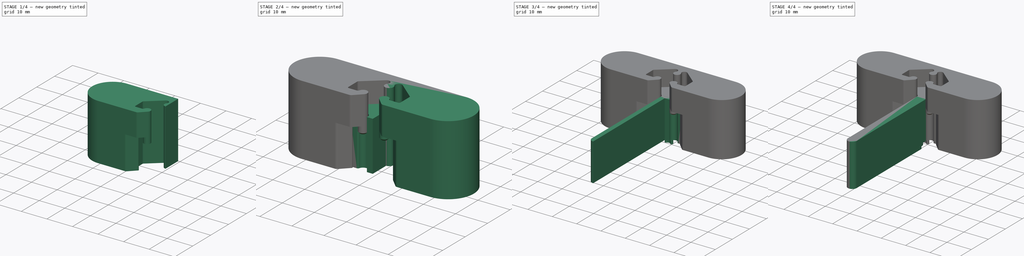
[diagram: build sequence overview — one tinted view per stage of 4, left to right]
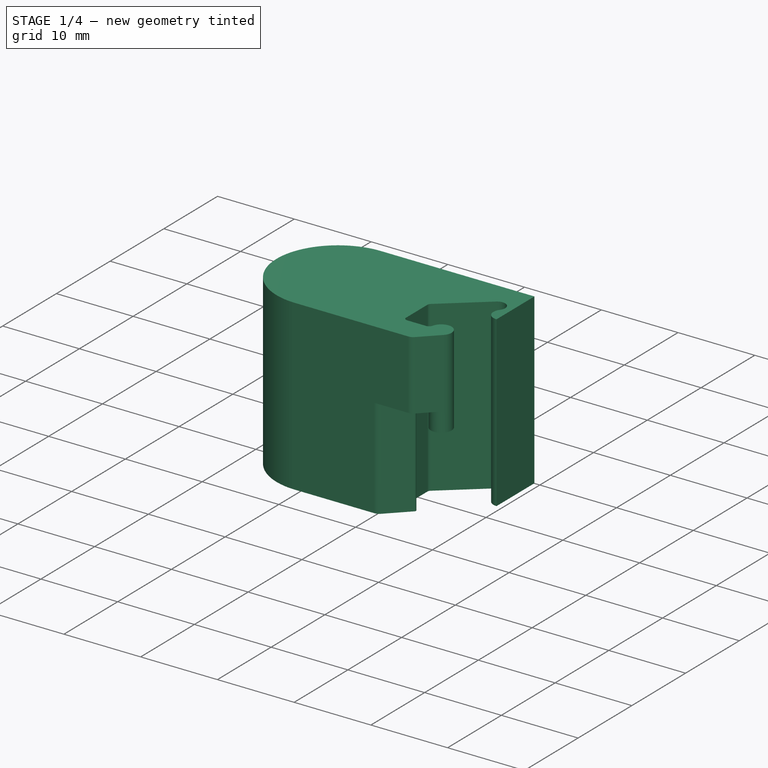
[diagram: stage 1 of 4 — iso view after this stage's code; geometry added in this stage tinted green]
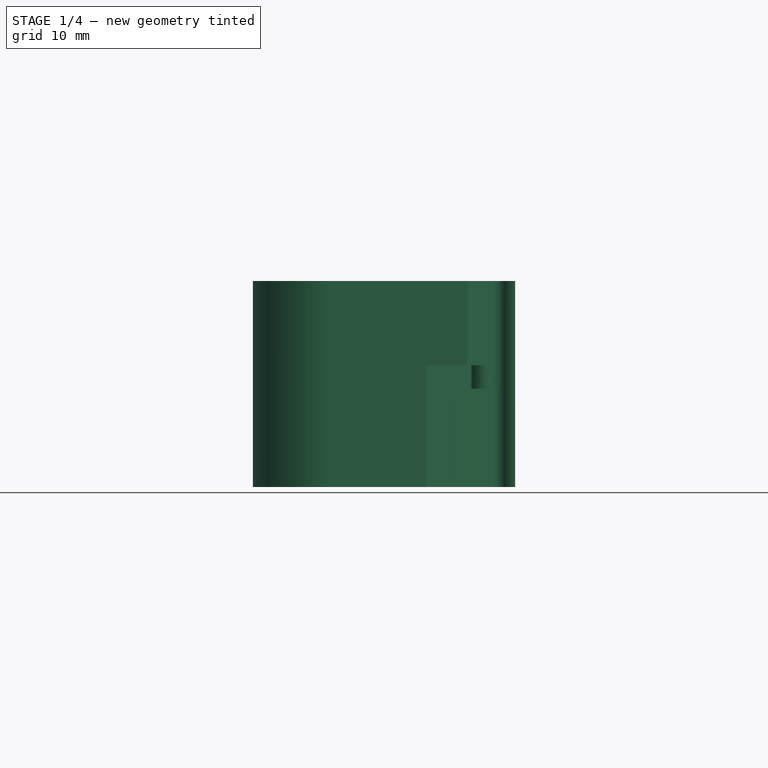
[diagram: stage 1 of 4 — front view after this stage's code; geometry added in this stage tinted green]
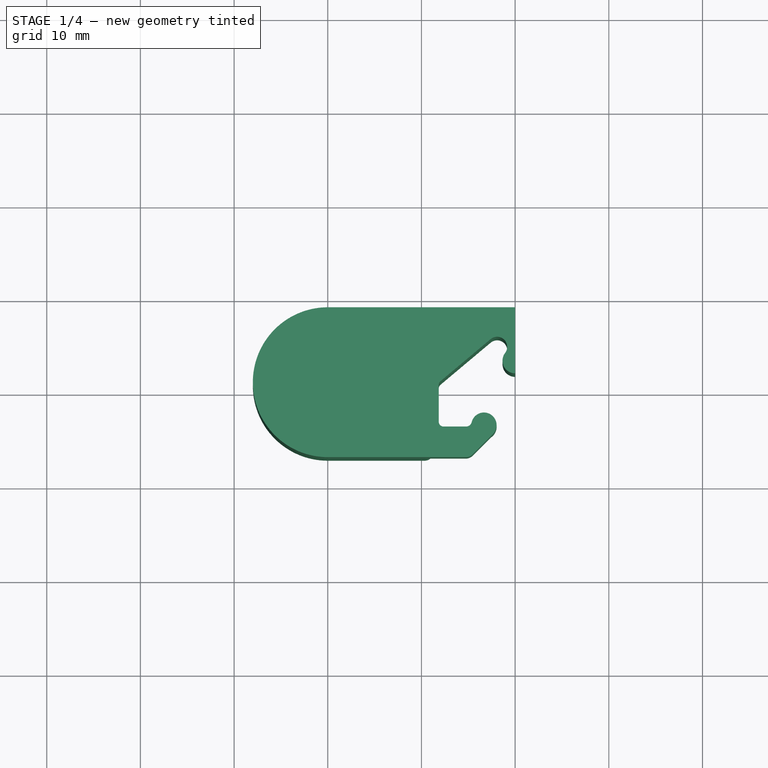
[diagram: stage 1 of 4 — top view after this stage's code; geometry added in this stage tinted green]
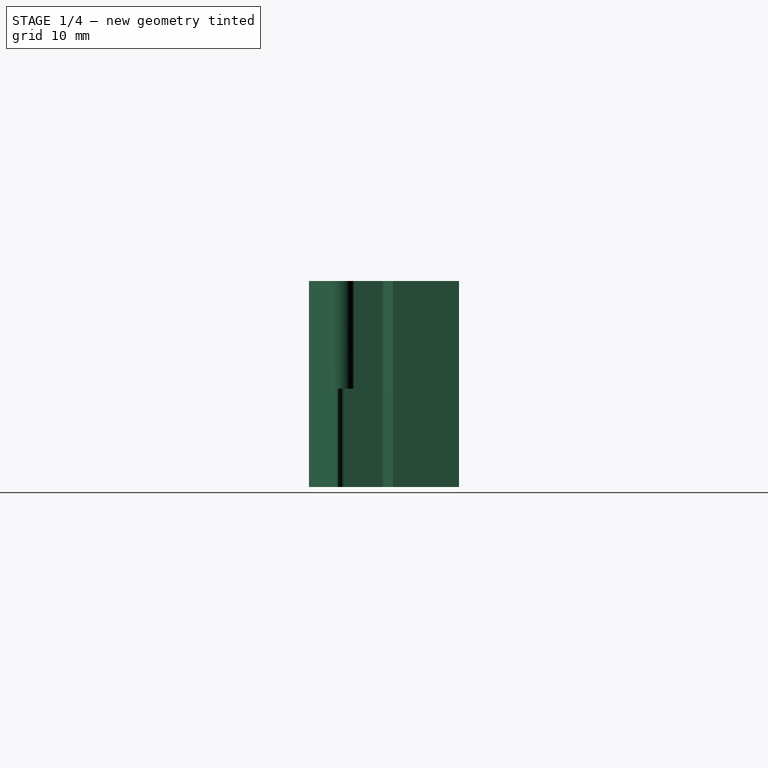
[diagram: stage 1 of 4 — right view after this stage's code; geometry added in this stage tinted green]
FCSTD DOCUMENT  (FreeCAD 0.21R33771 (Git))
Label: magnet_press_jig_side_2 part_v2
License: All rights reserved
LicenseURL: https://en.wikipedia.org/wiki/All_rights_reserved
objects: Sketcher::SketchObject×9, PartDesign::Pad×8, PartDesign::Mirrored×3, PartDesign::Body×2, PartDesign::Plane×1, PartDesign::Chamfer×1
note: 33 computed .brp shape members not serialized (recipe doc carries the construction recipe); baked Part::Feature solids carry a one-line shape summary decoded from their .brp

FEATURE [Sketcher::SketchObject] Sketch001
  FullyConstrained = true
  MapMode = 5
  Support = -> [XY_Plane001]
  sketch-geometry (14):
    g0: LineSegment StartX=0 StartY=9 StartZ=0 EndX=-20 EndY=9 EndZ=0
    g1: ArcOfCircle CenterX=0 CenterY=3.3 CenterZ=0 NormalX=0 NormalY=0 NormalZ=1 AngleXU=0 Radius=1.35 StartAngle=2.48785 EndAngle=4.71239
    g2: LineSegment StartX=-2.616 StartY=5.59829 StartZ=0 EndX=-7.97139 EndY=1.10457 EndZ=0
    g3: LineSegment StartX=-8.15 StartY=0.721553 StartZ=0 EndX=-8.15 EndY=-3.23 EndZ=0
    g4: LineSegment StartX=-20 StartY=-7 StartZ=0 EndX=-9.68066 EndY=-7 EndZ=0
    g5: LineSegment StartX=0 StartY=9 StartZ=0 EndX=0 EndY=1.95 EndZ=0
    g6: ArcOfCircle CenterX=-1.925 CenterY=4.77479 CenterZ=0 NormalX=0 NormalY=0 NormalZ=1 AngleXU=0 Radius=1.075 StartAngle=5.62944 EndAngle=8.55211
    g7: ArcOfCircle CenterX=-7.65 CenterY=0.721553 CenterZ=0 NormalX=0 NormalY=0 NormalZ=1 AngleXU=0 Radius=0.5 StartAngle=2.26893 EndAngle=3.14159
    g8: LineSegment StartX=-7.65 StartY=-3.73 StartZ=0 EndX=-6.6 EndY=-3.73 EndZ=0
    g9: LineSegment StartX=-6.42322 StartY=-4.15678 StartZ=0 EndX=-8.97355 EndY=-6.70711 EndZ=0
    g10: ArcOfCircle CenterX=-7.65 CenterY=-3.23 CenterZ=0 NormalX=0 NormalY=0 NormalZ=1 AngleXU=0 Radius=0.5 StartAngle=3.14159 EndAngle=4.71239
    g11: ArcOfCircle CenterX=-20 CenterY=1 CenterZ=0 NormalX=0 NormalY=0 NormalZ=1 AngleXU=0 Radius=8 StartAngle=1.5708 EndAngle=4.71239
    g12: ArcOfCircle CenterX=-9.68066 CenterY=-6 CenterZ=0 NormalX=0 NormalY=0 NormalZ=1 AngleXU=0 Radius=1 StartAngle=4.71239 EndAngle=5.49779
    g13: ArcOfCircle CenterX=-6.6 CenterY=-3.98 CenterZ=0 NormalX=0 NormalY=0 NormalZ=1 AngleXU=0 Radius=0.25 StartAngle=5.49779 EndAngle=7.85398
  constraints (39):
    c: PointOnObject(g0,g-2)
    c: Horizontal(g0)
    c: PointOnObject(g1,g-2)
    c: Vertical(g3)
    c: Angle(g3,g2) = 2.26893
    c: DistanceY(g-1,g1) = 3.3
    c: Diameter(g1) = 2.7
    c: DistanceY(g4,g-1) = 7
    c: Horizontal(g4)
    c: DistanceY(g4,g-1) = 7
    c: Coincident(g5,g0)
    c: Coincident(g5,g1)
    c: Vertical(g5)
    c: DistanceY(g-1,g0) = 9
    c: DistanceX(g4,g-1) = 20
    c: Tangent(g1,g6) = 1.5708
    c: Tangent(g2,g7) = -1.5708
    c: Tangent(g3,g7) = -1.5708
    c: Diameter(g7) = 1
    c: Horizontal(g8)
    c: Tangent(g3,g10) = -1.5708
    c: Tangent(g8,g10) = -1.5708
    c: Diameter(g10) = 1
    c: DistanceX(g3,g-1) = 8.15
    c: Vertical(g0,g4)
    c: Coincident(g11,g4)
    c: Tangent(g11,g0) = -1.5708
    c: Angle(g9,g-2) = 0.785398
    c: Tangent(g6,g2) = -1.5708
    c: Diameter(g6) = 2.15
    c: DistanceY(g-1,g6) = 4.77479
    c: Tangent(g4,g12) = -1.5708
    c: Tangent(g9,g12) = 1.5708
    c: Diameter(g12) = 2
    c: Tangent(g9,g13) = 1.5708
    c: Tangent(g8,g13) = 1.5708
    c: DistanceY(g8,g-1) = 3.73
    c: Diameter(g13) = 0.5
    c: DistanceX(g13,g-1) = 6.6
FEATURE [PartDesign::Pad] Pad001
  Direction = (0,0,1)
  Length = 22
  Length2 = 10
  Profile = -> Sketch001
  ReferenceAxis = -> Sketch001 [N_Axis]
  Type = 0
FEATURE [PartDesign::Plane] DatumPlane
  AttachmentOffset = pos=(0,0,13) rot=(0,0,1;0rad)
  Length = 66.4553
  MapMode = 5
  Placement = pos=(0,0,13) rot=(0,0,1;0rad)
  ResizeMode = 0
  Support = -> [XY_Plane001]
  Width = 60.572
FEATURE [Sketcher::SketchObject] Sketch002
  FullyConstrained = true
  MapMode = 5
  Placement = pos=(0,0,13) rot=(0,0,1;0rad)
  Support = -> [DatumPlane]
  sketch-geometry (7):
    g0: ArcOfCircle CenterX=-3.33 CenterY=-3.58455 CenterZ=0 NormalX=0 NormalY=0 NormalZ=1 AngleXU=0 Radius=1.35 StartAngle=5.49779 EndAngle=9.18761
    g1: LineSegment StartX=-5.23 StartY=-3.73 StartZ=0 EndX=-10 EndY=-3.73 EndZ=0
    g2: LineSegment StartX=-5.25048 StartY=-7 StartZ=0 EndX=-10 EndY=-7 EndZ=0
    g3: LineSegment StartX=-10 StartY=-7 StartZ=0 EndX=-10 EndY=-3.73 EndZ=0
    g4: ArcOfCircle CenterX=-5.23 CenterY=-3.12528 CenterZ=0 NormalX=0 NormalY=0 NormalZ=1 AngleXU=0 Radius=0.60472 StartAngle=4.71239 EndAngle=6.04601
    g5: LineSegment StartX=-4.54337 StartY=-6.70711 StartZ=0 EndX=-2.37541 EndY=-4.53914 EndZ=0
    g6: ArcOfCircle CenterX=-5.25048 CenterY=-6 CenterZ=0 NormalX=0 NormalY=0 NormalZ=1 AngleXU=0 Radius=1 StartAngle=4.71239 EndAngle=5.49779
  constraints (19):
    c: DistanceX(g0,g-1) = 3.33
    c: Diameter(g0) = 2.7
    c: DistanceY(g0,g-1) = 3.58455
    c: Horizontal(g1)
    c: Horizontal(g2)
    c: Coincident(g3,g2)
    c: Coincident(g3,g1)
    c: Vertical(g3)
    c: DistanceY(g1,g-1) = 3.73
    c: DistanceX(g2,g-1) = 10
    c: Tangent(g4,g0) = 1.5708
    c: Tangent(g4,g1) = 1.5708
    c: DistanceX(g4,g-1) = 5.23
    c: Tangent(g5,g0) = -1.5708
    c: Angle(g5,g2) = 2.35619
    c: Tangent(g5,g6) = -1.5708
    c: Tangent(g2,g6) = 1.5708
    c: Diameter(g6) = 2
    c: DistanceY(g2,g-1) = 7
FEATURE [PartDesign::Pad] Pad002
  BaseFeature = -> Pad001
  Direction = (0,0,1)
  Length = 9
  Length2 = 10
  Profile = -> Sketch002
  ReferenceAxis = -> Sketch002 [N_Axis]
  Refine = true
  Type = 0
FEATURE [Sketcher::SketchObject] Sketch003
  FullyConstrained = true
  MapMode = 5
  Placement = pos=(0,0,13) rot=(0,0,1;0rad)
  Support = -> [DatumPlane]
  sketch-geometry (1):
    g0: Circle CenterX=-3.33 CenterY=-3.58455 CenterZ=0 NormalX=0 NormalY=0 NormalZ=1 AngleXU=0 Radius=1.35
  constraints (3):
    c: DistanceX(g0,g-1) = 3.33
    c: DistanceY(g0,g-1) = 3.58455
    c: Diameter(g0) = 2.7
FEATURE [PartDesign::Pad] Pad003
  BaseFeature = -> Pad002
  Direction = (0,0,1)
  Length = 2.5
  Length2 = 10
  Profile = -> Sketch003
  ReferenceAxis = -> Sketch003 [N_Axis]
  Reversed = true
  Type = 0
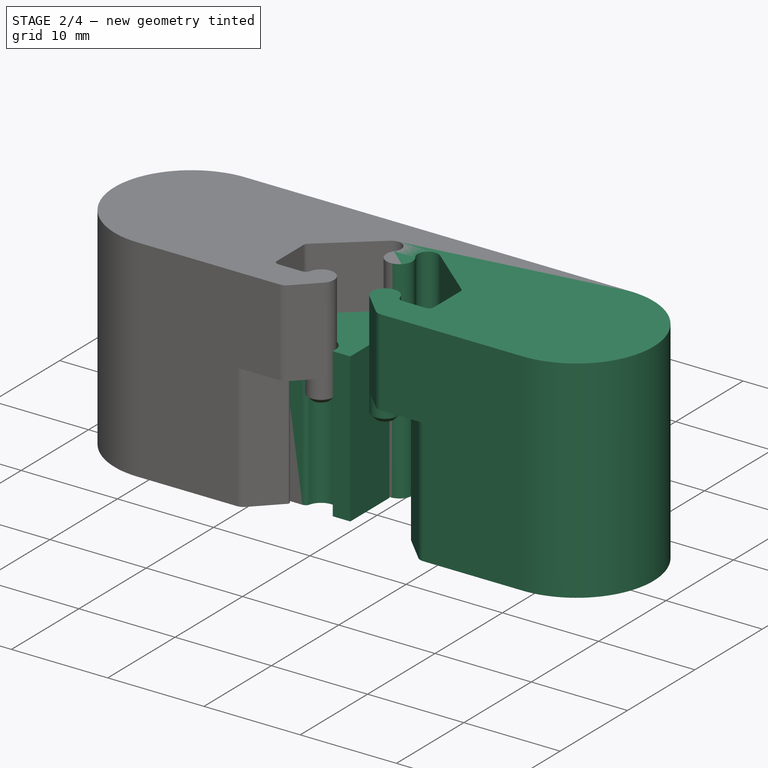
[diagram: stage 2 of 4 — iso view after this stage's code; geometry added in this stage tinted green]
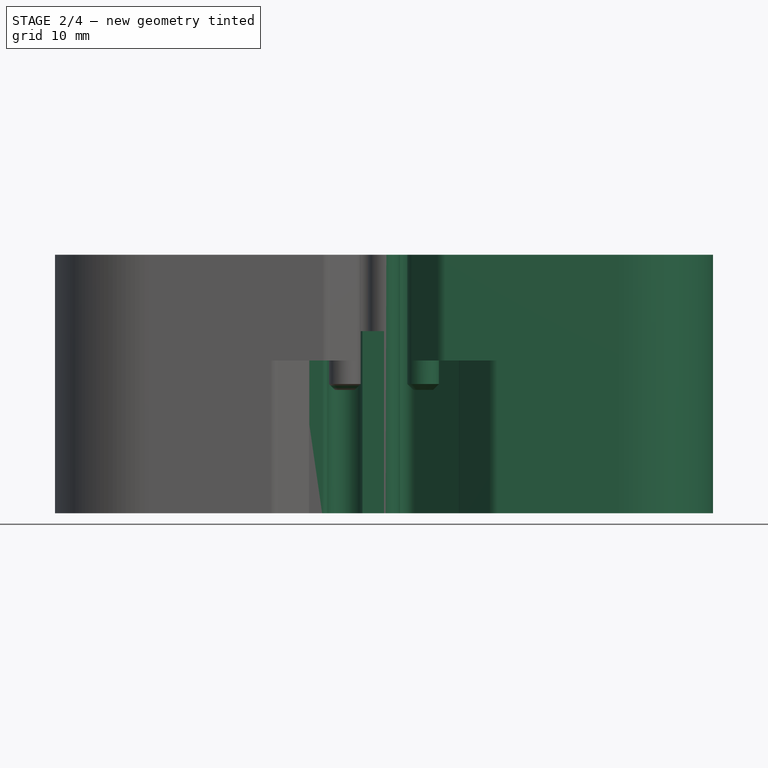
[diagram: stage 2 of 4 — front view after this stage's code; geometry added in this stage tinted green]
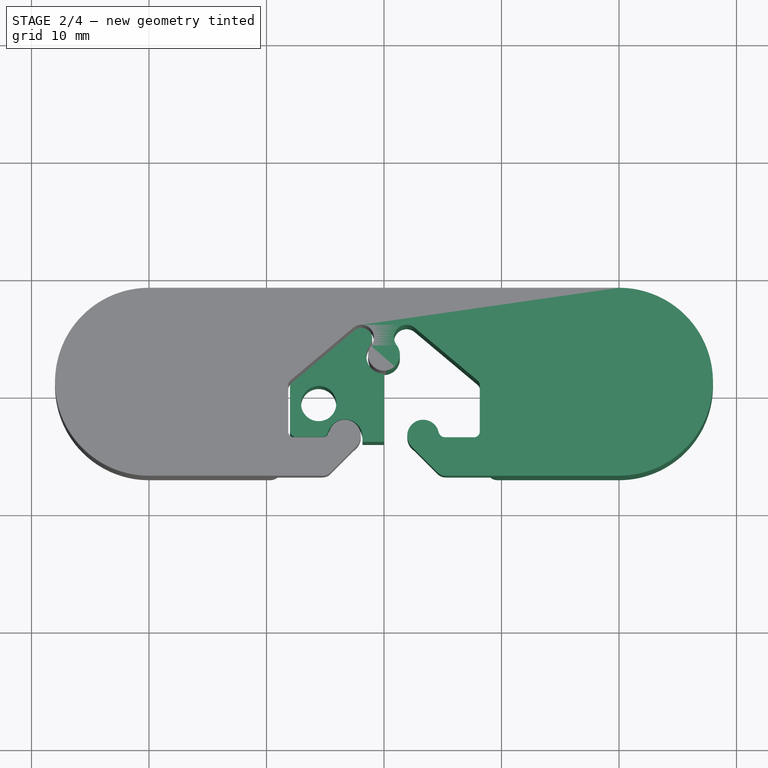
[diagram: stage 2 of 4 — top view after this stage's code; geometry added in this stage tinted green]
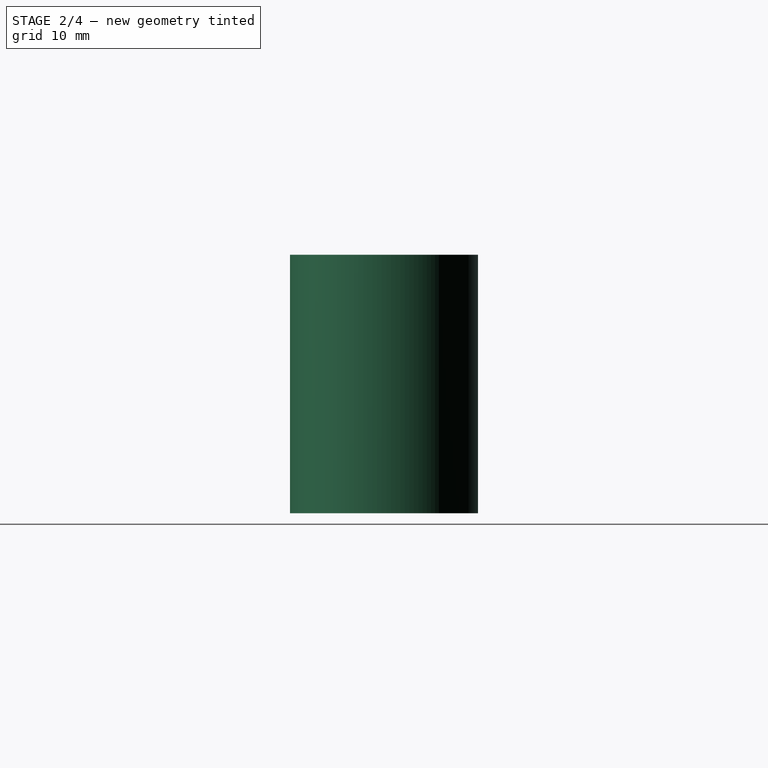
[diagram: stage 2 of 4 — right view after this stage's code; geometry added in this stage tinted green]
FEATURE [Sketcher::SketchObject] Sketch
  FullyConstrained = true
  MapMode = 5
  Support = -> [XY_Plane]
  sketch-geometry (17):
    g0: Circle CenterX=-5.56047 CenterY=-0.741499 CenterZ=0 NormalX=0 NormalY=0 NormalZ=1 AngleXU=0 Radius=1.5
    g1: ArcOfCircle CenterX=-3.33 CenterY=-3.58 CenterZ=0 NormalX=0 NormalY=0 NormalZ=1 AngleXU=0 Radius=1.5 StartAngle=0 EndAngle=2.88891
    g2: ArcOfCircle CenterX=0 CenterY=3.3 CenterZ=0 NormalX=0 NormalY=0 NormalZ=1 AngleXU=0 Radius=1.5 StartAngle=2.48706 EndAngle=4.71239
    g3: LineSegment StartX=-8 StartY=-3.08 StartZ=0 EndX=-8 EndY=0.651604 EndZ=0
    g4: LineSegment StartX=-7.82139 StartY=1.03463 StartZ=0 EndX=-2.51958 EndY=5.48338 EndZ=0
    g5: LineSegment StartX=-3e-16 StartY=-4 StartZ=0 EndX=-3e-16 EndY=1.8 EndZ=0
    g6: LineSegment StartX=-1.83 StartY=-3.58 StartZ=0 EndX=-1.83 EndY=-4 EndZ=0
    g7: LineSegment StartX=-1.83 StartY=-4 StartZ=0 EndX=-2e-16 EndY=-4 EndZ=0
    g8: LineSegment StartX=-3.33 StartY=-3.58 StartZ=0 EndX=-5.56047 EndY=-0.741499 EndZ=0
    g9: LineSegment StartX=-7.5 StartY=-3.58 StartZ=0 EndX=-5.26649 EndY=-3.58 EndZ=0
    g10: ArcOfCircle CenterX=-7.5 CenterY=0.651604 CenterZ=0 NormalX=0 NormalY=0 NormalZ=1 AngleXU=0 Radius=0.5 StartAngle=2.26893 EndAngle=3.14159
    g11: ArcOfCircle CenterX=-7.5 CenterY=-3.08 CenterZ=0 NormalX=0 NormalY=0 NormalZ=1 AngleXU=0 Radius=0.5 StartAngle=3.14159 EndAngle=4.71239
    g12: ArcOfCircle CenterX=-5.26649 CenterY=-3.08 CenterZ=0 NormalX=0 NormalY=0 NormalZ=1 AngleXU=0 Radius=0.5 StartAngle=4.71239 EndAngle=6.03051
    g13: GeomPoint X=-4.63368 Y=-1.92093 Z=0
    g14: GeomPoint X=-4.25679 Y=-2.40057 Z=0
    g15: ArcOfCircle CenterX=-1.925 CenterY=4.77479 CenterZ=0 NormalX=0 NormalY=0 NormalZ=1 AngleXU=0 Radius=0.925 StartAngle=5.63073 EndAngle=8.55211
    g16: GeomPoint X=-1 Y=4.77479 Z=0
  constraints (49):
    c: PointOnObject(g2,g-2)
    c: DistanceY(g-1,g2) = 3.3
    c: Diameter(g2) = 3
    c: DistanceX(g1,g-1) = 3.33
    c: Diameter(g0) = 3
    c: Diameter(g1) = 3
    c: Vertical(g3)
    c: Vertical(g5)
    c: Coincident(g2,g5)
    c: Angle(g3,g4) = 2.26893
    c: PointOnObject(g5,g-2)
    c: Horizontal(g1,g1)
    c: Coincident(g6,g1)
    c: Vertical(g6)
    c: Coincident(g7,g6)
    c: Horizontal(g7)
    c: Coincident(g5,g7)
    c: DistanceY(g1,g-1) = 3.58
    c: DistanceY(g5,g-1) = 4
    c: Coincident(g8,g1)
    c: Coincident(g8,g0)
    c: Distance(g8) = 3.61
    c: Angle(g8,g-1) = 0.904779
    c: Tangent(g4,g10) = 1.5708
    c: Tangent(g3,g10) = 1.5708
    c: Tangent(g3,g11) = 1.5708
    c: Tangent(g9,g11) = -1.5708
    c: Tangent(g1,g12) = 1.5708
    c: Tangent(g9,g12) = -1.5708
    c: Equal(g12,g11)
    c: Equal(g12,g10)
    c: Diameter(g12) = 1
    c: Horizontal(g9)
    c: Horizontal(g9,g1)
    c: DistanceX(g3,g-1) = 8
    c: PointOnObject(g14,g8)
    c: PointOnObject(g13,g8)
    c: PointOnObject(g13,g0)
    c: PointOnObject(g14,g1)
    c: Distance(g14,g13) = 0.61
    c: Tangent(g15,g4) = 1.5708
    c: Diameter(g15) = 1.85
    c: PointOnObject(g16,g15)
    c: DistanceX(g16,g-1) = 1
    c: Horizontal(g16,g15)
    c: Coincident(g15,g2)
    c: DistanceX(g15,g-1) = 1.925
    c: DistanceY(g-1,g15) = 4.77479
    c: DistanceX(g2,g-1) = 1.19
FEATURE [PartDesign::Pad] Pad
  Direction = (0,0,1)
  Length = 15.5
  Length2 = 10
  Profile = -> Sketch
  ReferenceAxis = -> Sketch [N_Axis]
  Type = 0
FEATURE [PartDesign::Mirrored] Mirrored001
  BaseFeature = -> Pad003
  MirrorPlane = -> Sketch001 [V_Axis]
  Originals = -> [Pad001,Pad002,Pad003]
  Refine = true
FEATURE [PartDesign::Body] Body
  Group = -> [Sketch,Pad,Pad006,Mirrored,Sketch004,Sketch005,Pad005,Pad007,Pad008,Mirrored002,Sketch006,Sketch007,Sketch008]
  Origin = -> Origin
  Tip = -> Mirrored002
FEATURE [PartDesign::Chamfer] Chamfer
  Angle = 45
  Base = -> Mirrored001 [Edge108,Edge110]
  BaseFeature = -> Mirrored001
  ChamferType = 0
  FlipDirection = false
  Size = 0.5
  Size2 = 1
  SupportTransform = false
  UseAllEdges = false
FEATURE [PartDesign::Body] Body001
  Group = -> [Sketch001,Pad001,DatumPlane,Sketch002,Pad002,Sketch003,Pad003,Mirrored001,Chamfer]
  Origin = -> Origin001
  Tip = -> Chamfer
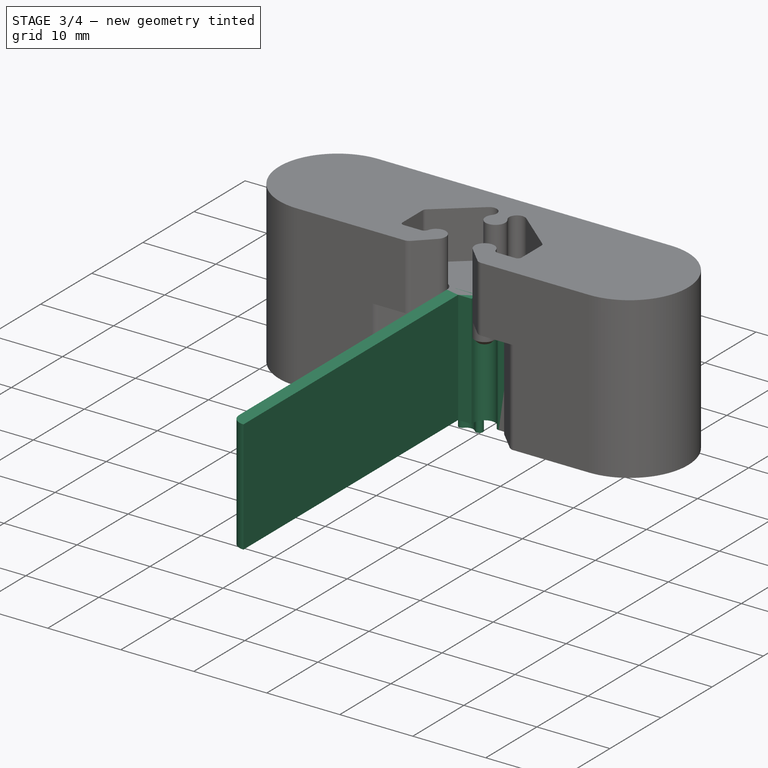
[diagram: stage 3 of 4 — iso view after this stage's code; geometry added in this stage tinted green]
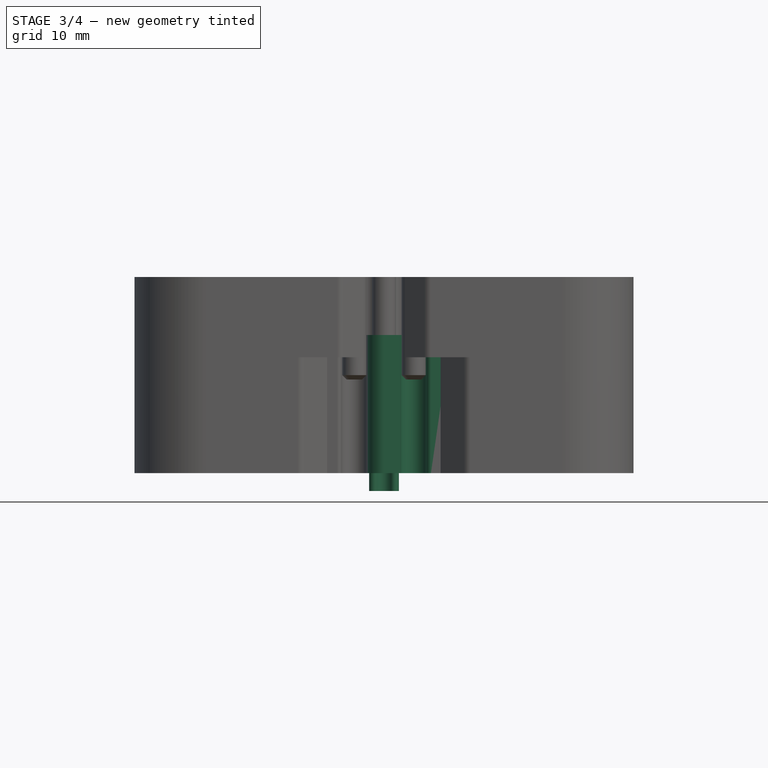
[diagram: stage 3 of 4 — front view after this stage's code; geometry added in this stage tinted green]
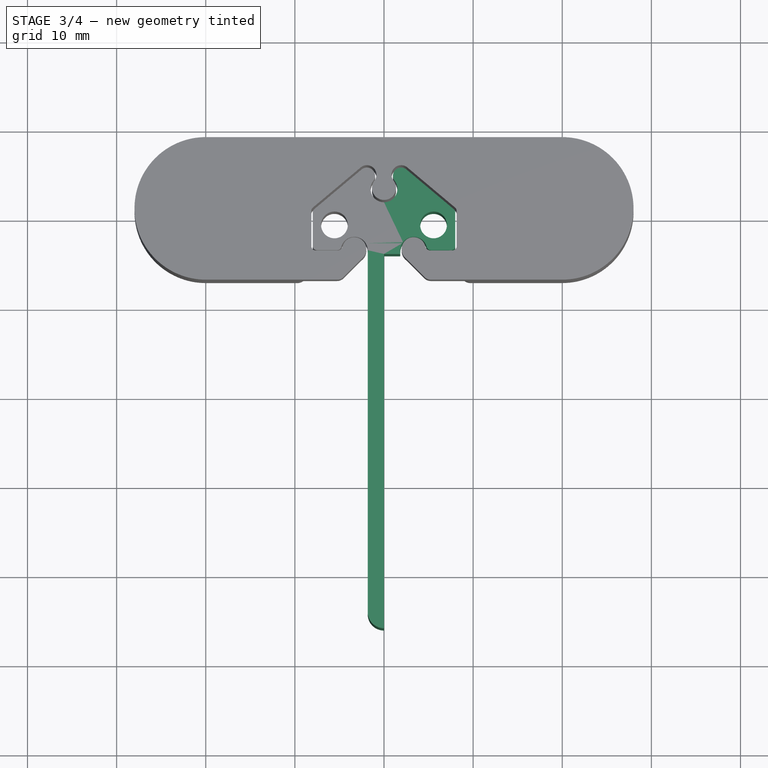
[diagram: stage 3 of 4 — top view after this stage's code; geometry added in this stage tinted green]
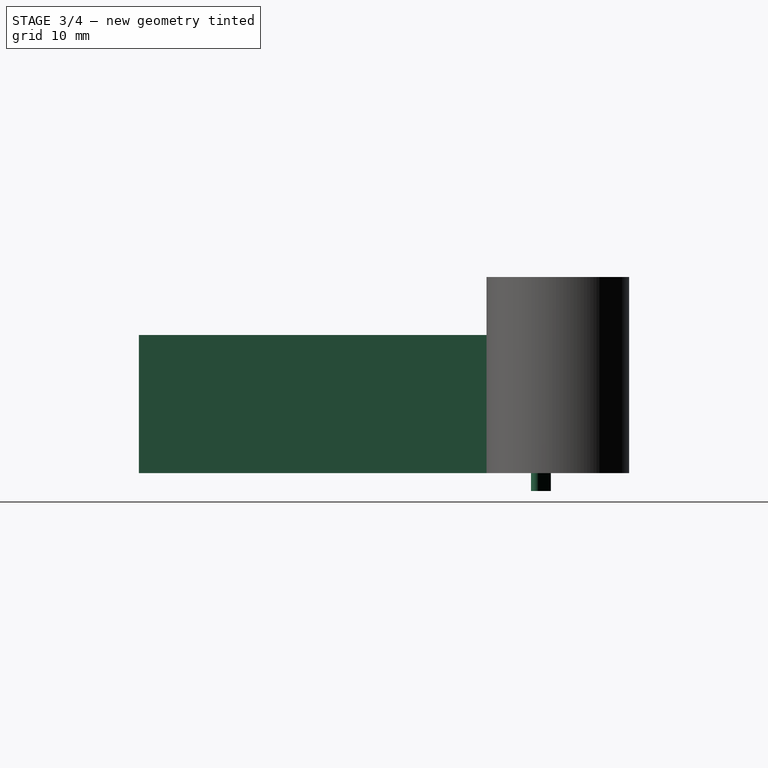
[diagram: stage 3 of 4 — right view after this stage's code; geometry added in this stage tinted green]
FEATURE [Sketcher::SketchObject] Sketch004
  FullyConstrained = true
  MapMode = 5
  Support = -> [XY_Plane]
  sketch-geometry (8):
    g0: ArcOfCircle CenterX=-3.33 CenterY=-3.58455 CenterZ=0 NormalX=0 NormalY=0 NormalZ=1 AngleXU=0 Radius=1.5 StartAngle=1e-16 EndAngle=1.08358
    g1: ArcOfCircle CenterX=0 CenterY=-0.126325 CenterZ=0 NormalX=0 NormalY=0 NormalZ=1 AngleXU=0 Radius=0.35 StartAngle=1.5708 EndAngle=2.35619
    g2: LineSegment StartX=-0.247487 StartY=0.121162 StartZ=0 EndX=-2.62774 EndY=-2.25909 EndZ=0
    g3: LineSegment StartX=0 StartY=-0.126325 StartZ=0 EndX=-3.39411 EndY=-3.52044 EndZ=0
    g4: LineSegment StartX=-3.39411 StartY=-3.52044 StartZ=0 EndX=-3.33 EndY=-3.58455 EndZ=0
    g5: LineSegment StartX=0 StartY=0.223675 StartZ=0 EndX=0 EndY=-4 EndZ=0
    g6: LineSegment StartX=-1.83 StartY=-3.58455 StartZ=0 EndX=-1.83 EndY=-4 EndZ=0
    g7: LineSegment StartX=-1.83 StartY=-4 StartZ=0 EndX=0 EndY=-4 EndZ=0
  constraints (23):
    c: PointOnObject(g1,g-2)
    c: DistanceX(g0,g-1) = 3.33
    c: DistanceY(g0,g-1) = 3.58455
    c: Diameter(g0) = 3
    c: Diameter(g1) = 0.7
    c: Tangent(g1,g2) = -1.5708
    c: Coincident(g3,g1)
    c: Coincident(g4,g3)
    c: Coincident(g4,g0)
    c: Perpendicular(g3,g4)
    c: Parallel(g3,g2)
    c: Distance(g3) = 4.8
    c: Vertical(g5)
    c: Coincident(g1,g5)
    c: Angle(g2,g5) = 0.785398
    c: Vertical(g6)
    c: Coincident(g0,g2)
    c: Tangent(g0,g6) = 1.5708
    c: Horizontal(g7)
    c: Coincident(g6,g7)
    c: Coincident(g5,g7)
    c: DistanceY(g5,g-1) = 4
    c: PointOnObject(g5,g-2)
FEATURE [Sketcher::SketchObject] Sketch005
  FullyConstrained = true
  MapMode = 5
  Support = -> [XY_Plane]
  sketch-geometry (4):
    g0: LineSegment StartX=-1.83 StartY=-4 StartZ=0 EndX=-1.83 EndY=-44.17 EndZ=0
    g1: LineSegment StartX=-1.83 StartY=-4 StartZ=0 EndX=-4e-16 EndY=-4 EndZ=0
    g2: ArcOfCircle CenterX=0 CenterY=-44.17 CenterZ=0 NormalX=0 NormalY=0 NormalZ=1 AngleXU=0 Radius=1.83 StartAngle=3.14159 EndAngle=4.71239
    g3: LineSegment StartX=-3e-16 StartY=-4 StartZ=0 EndX=-3e-16 EndY=-46 EndZ=0
  constraints (12):
    c: PointOnObject(g2,g-2)
    c: Vertical(g0)
    c: Horizontal(g1)
    c: Coincident(g0,g1)
    c: DistanceY(g1,g-1) = 4
    c: DistanceX(g1,g1) = 1.83
    c: Tangent(g2,g0) = -1.5708
    c: Coincident(g3,g1)
    c: Vertical(g3)
    c: PointOnObject(g3,g-2)
    c: Coincident(g2,g3)
    c: DistanceY(g3,g3) = 42
FEATURE [Sketcher::SketchObject] Sketch006
  FullyConstrained = true
  MapMode = 5
  Support = -> [XY_Plane]
  sketch-geometry (5):
    g0: ArcOfCircle CenterX=0 CenterY=-0.125 CenterZ=0 NormalX=0 NormalY=0 NormalZ=1 AngleXU=0 Radius=0.35 StartAngle=1.5708 EndAngle=2.35619
    g1: LineSegment StartX=-0.247487 StartY=0.122487 StartZ=0 EndX=-1.51642 EndY=-1.14645 EndZ=0
    g2: ArcOfCircle CenterX=0 CenterY=-2.44749 CenterZ=0 NormalX=0 NormalY=0 NormalZ=1 AngleXU=0 Radius=1 StartAngle=1.5708 EndAngle=2.4579
    g3: ArcOfCircle CenterX=-1.16287 CenterY=-1.5 CenterZ=0 NormalX=0 NormalY=0 NormalZ=1 AngleXU=0 Radius=0.5 StartAngle=2.35619 EndAngle=5.59949
    g4: LineSegment StartX=0 StartY=0.225 StartZ=0 EndX=0 EndY=-1.44749 EndZ=0
  constraints (15):
    c: PointOnObject(g0,g-2)
    c: Diameter(g0) = 0.7
    c: Tangent(g0,g1) = -1.5708
    c: DistanceY(g-1,g0) = 0.225
    c: PointOnObject(g2,g-2)
    c: Angle(g-2,g1) = 2.35619
    c: Tangent(g3,g1) = -1.5708
    c: Coincident(g4,g0)
    c: Vertical(g4)
    c: PointOnObject(g4,g-2)
    c: Coincident(g2,g4)
    c: Diameter(g3) = 1
    c: Diameter(g2) = 2
    c: Tangent(g3,g2) = 1.5708
    c: DistanceY(g3,g-1) = 1.5
FEATURE [PartDesign::Pad] Pad006
  BaseFeature = -> Pad
  Direction = (0,0,1)
  Length = 2
  Length2 = 10
  Profile = -> Sketch006
  ReferenceAxis = -> Sketch006 [N_Axis]
  Reversed = true
  Type = 0
FEATURE [PartDesign::Mirrored] Mirrored
  BaseFeature = -> Pad006
  MirrorPlane = -> Sketch [V_Axis]
  Originals = -> [Pad,Pad006]
FEATURE [PartDesign::Pad] Pad005
  BaseFeature = -> Mirrored
  Direction = (0,0,1)
  Length = 0
  Length2 = 15.5
  Profile = -> Sketch005
  ReferenceAxis = -> Sketch005 [N_Axis]
  Refine = true
  Reversed = true
  Type = 4
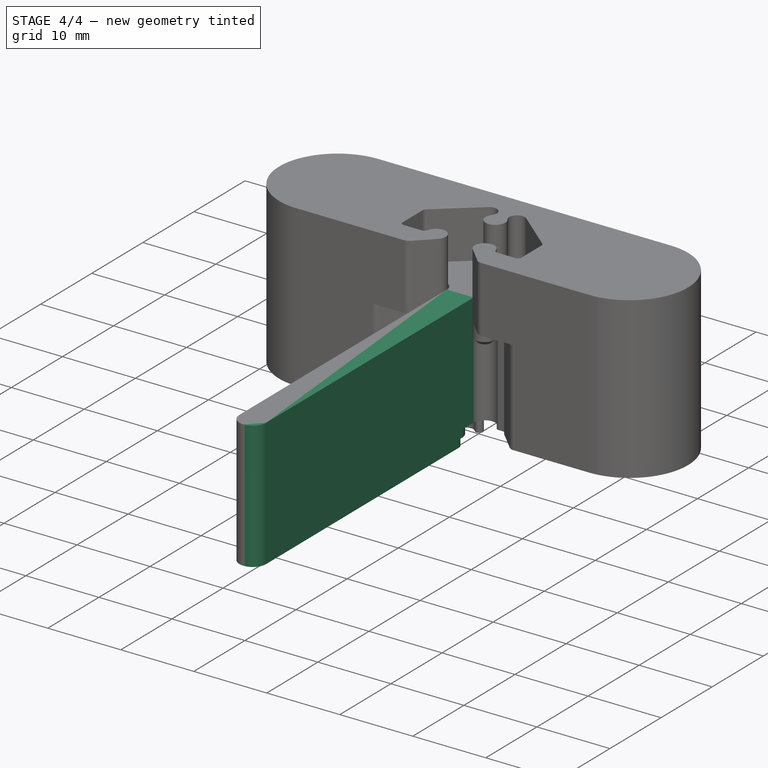
[diagram: stage 4 of 4 — iso view after this stage's code; geometry added in this stage tinted green]
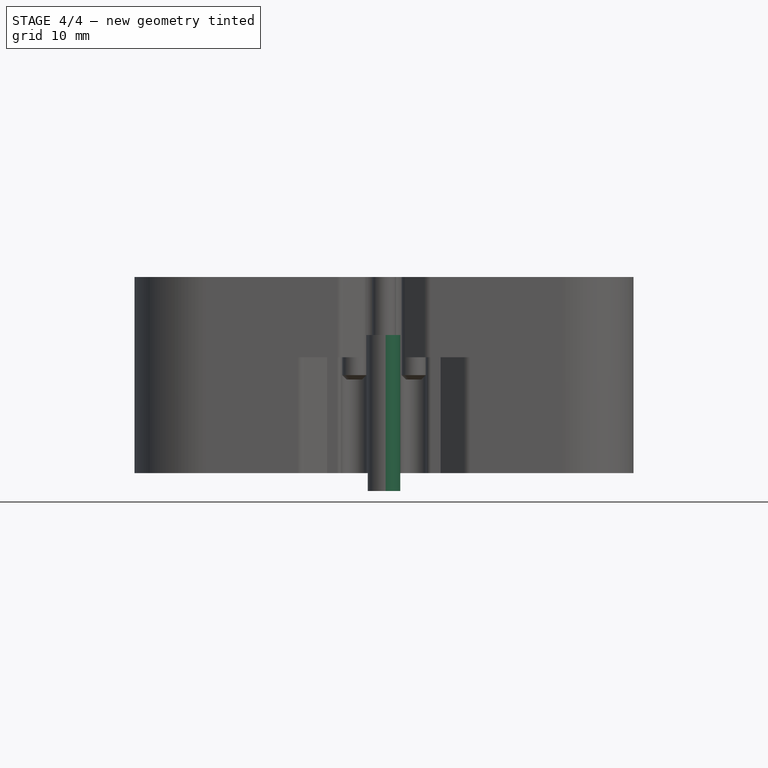
[diagram: stage 4 of 4 — front view after this stage's code; geometry added in this stage tinted green]
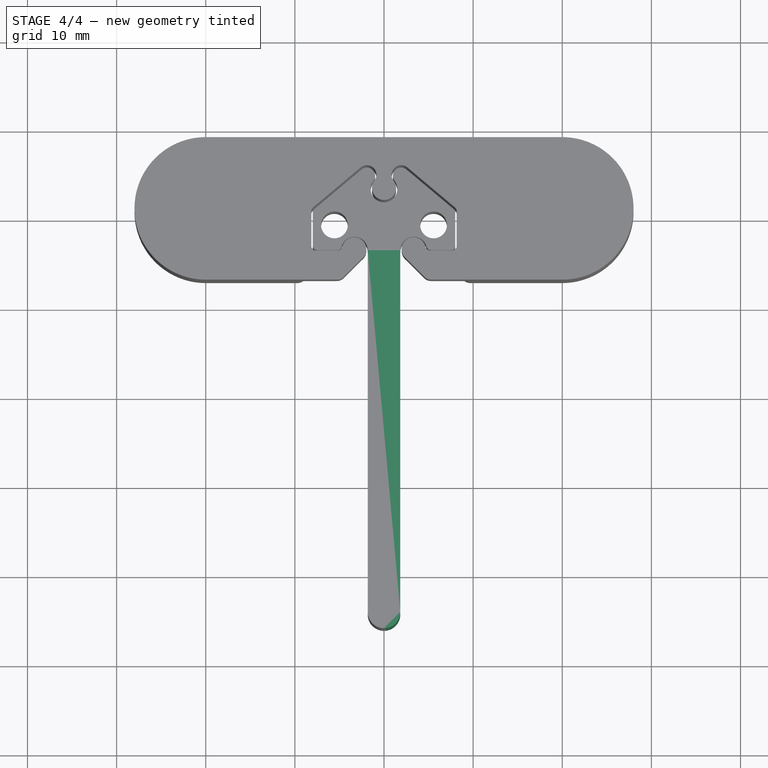
[diagram: stage 4 of 4 — top view after this stage's code; geometry added in this stage tinted green]
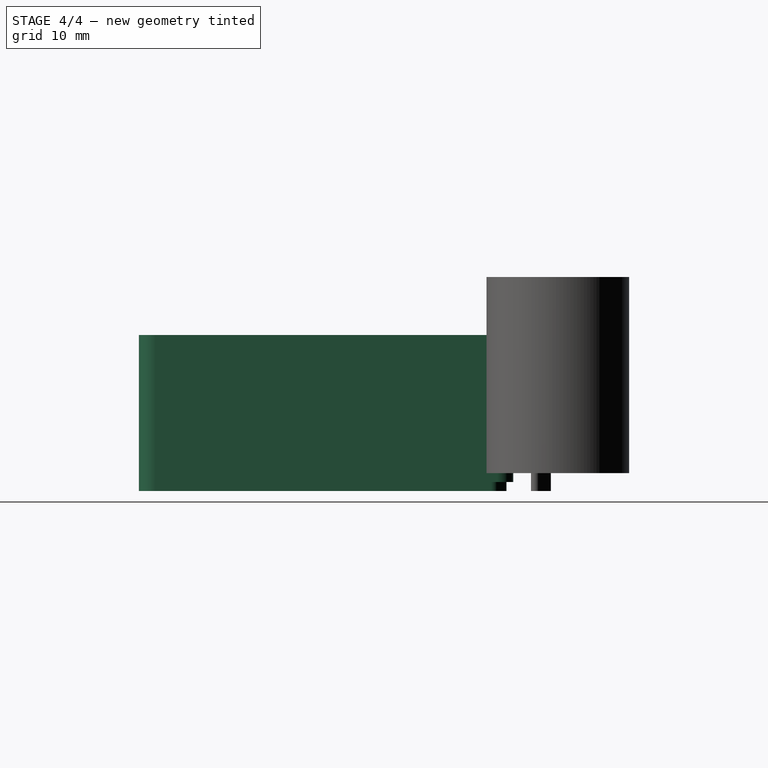
[diagram: stage 4 of 4 — right view after this stage's code; geometry added in this stage tinted green]
FEATURE [Sketcher::SketchObject] Sketch007
  FullyConstrained = true
  MapMode = 5
  Support = -> [XY_Plane]
  sketch-geometry (4):
    g0: ArcOfCircle CenterX=0 CenterY=-5.83 CenterZ=0 NormalX=0 NormalY=0 NormalZ=1 AngleXU=0 Radius=1.83 StartAngle=1.5708 EndAngle=3.14159
    g1: ArcOfCircle CenterX=0 CenterY=-44.17 CenterZ=0 NormalX=0 NormalY=0 NormalZ=1 AngleXU=0 Radius=1.83 StartAngle=3.14159 EndAngle=4.71239
    g2: LineSegment StartX=-1.83 StartY=-5.83 StartZ=0 EndX=-1.83 EndY=-44.17 EndZ=0
    g3: LineSegment StartX=-3e-16 StartY=-4 StartZ=0 EndX=-3e-16 EndY=-46 EndZ=0
  constraints (12):
    c: PointOnObject(g0,g-2)
    c: DistanceY(g0,g-1) = 4
    c: PointOnObject(g0,g-2)
    c: PointOnObject(g1,g-2)
    c: Diameter(g1) = 3.66
    c: DistanceY(g1,g-1) = 44.17
    c: Vertical(g2)
    c: Tangent(g2,g0) = -1.5708
    c: Coincident(g3,g0)
    c: Vertical(g3)
    c: Coincident(g1,g3)
    c: Tangent(g1,g2) = -1.5708
FEATURE [PartDesign::Pad] Pad007
  BaseFeature = -> Pad005
  Direction = (0,0,1)
  Length = 1
  Length2 = 10
  Profile = -> Sketch007
  ReferenceAxis = -> Sketch007 [N_Axis]
  Reversed = true
  Type = 0
FEATURE [Sketcher::SketchObject] Sketch008
  FullyConstrained = true
  MapMode = 5
  Support = -> [XY_Plane]
  sketch-geometry (6):
    g0: ArcOfCircle CenterX=0 CenterY=-5.975 CenterZ=0 NormalX=0 NormalY=0 NormalZ=1 AngleXU=0 Radius=1.225 StartAngle=1.5708 EndAngle=2.35619
    g1: ArcOfCircle CenterX=0 CenterY=-44.17 CenterZ=0 NormalX=0 NormalY=0 NormalZ=1 AngleXU=0 Radius=1.83 StartAngle=3.14159 EndAngle=4.71239
    g2: LineSegment StartX=-1.83 StartY=-6.4868 StartZ=0 EndX=-1.83 EndY=-44.17 EndZ=0
    g3: LineSegment StartX=1e-16 StartY=-4.75 StartZ=0 EndX=1e-16 EndY=-46 EndZ=0
    g4: LineSegment StartX=-1.53711 StartY=-5.7797 StartZ=0 EndX=-0.866206 EndY=-5.10879 EndZ=0
    g5: ArcOfCircle CenterX=-0.83 CenterY=-6.4868 CenterZ=0 NormalX=0 NormalY=0 NormalZ=1 AngleXU=0 Radius=1 StartAngle=2.35619 EndAngle=3.14159
  constraints (17):
    c: PointOnObject(g0,g-2)
    c: DistanceY(g0,g-1) = 4.75
    c: PointOnObject(g0,g-2)
    c: PointOnObject(g1,g-2)
    c: Diameter(g1) = 3.66
    c: DistanceY(g1,g-1) = 44.17
    c: Vertical(g2)
    c: Coincident(g3,g0)
    c: Vertical(g3)
    c: Coincident(g1,g3)
    c: Tangent(g1,g2) = -1.5708
    c: Diameter(g0) = 2.45
    c: Tangent(g4,g0) = 1.5708
    c: Tangent(g4,g5) = 1.5708
    c: Tangent(g2,g5) = -1.5708
    c: Diameter(g5) = 2
    c: Angle(g4,g3) = 0.785398
FEATURE [PartDesign::Pad] Pad008
  BaseFeature = -> Pad007
  Direction = (0,0,1)
  Length = 2
  Length2 = 10
  Profile = -> Sketch008
  ReferenceAxis = -> Sketch008 [N_Axis]
  Reversed = true
  Type = 0
FEATURE [PartDesign::Mirrored] Mirrored002
  BaseFeature = -> Pad008
  MirrorPlane = -> Sketch004 [V_Axis]
  Originals = -> [Pad005,Pad007,Pad008]
  Refine = true
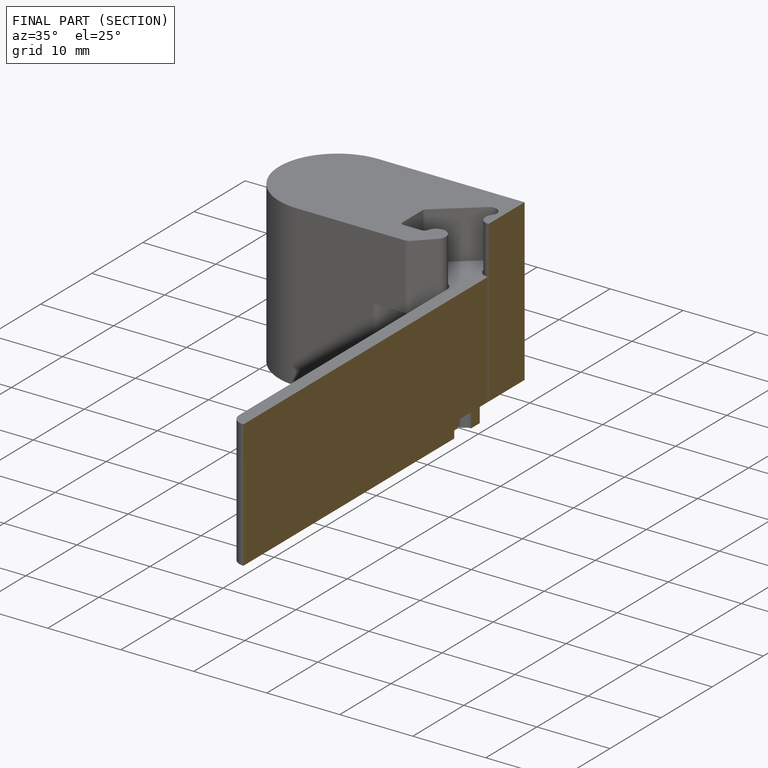
[diagram: finished part — half-section view (interior)]
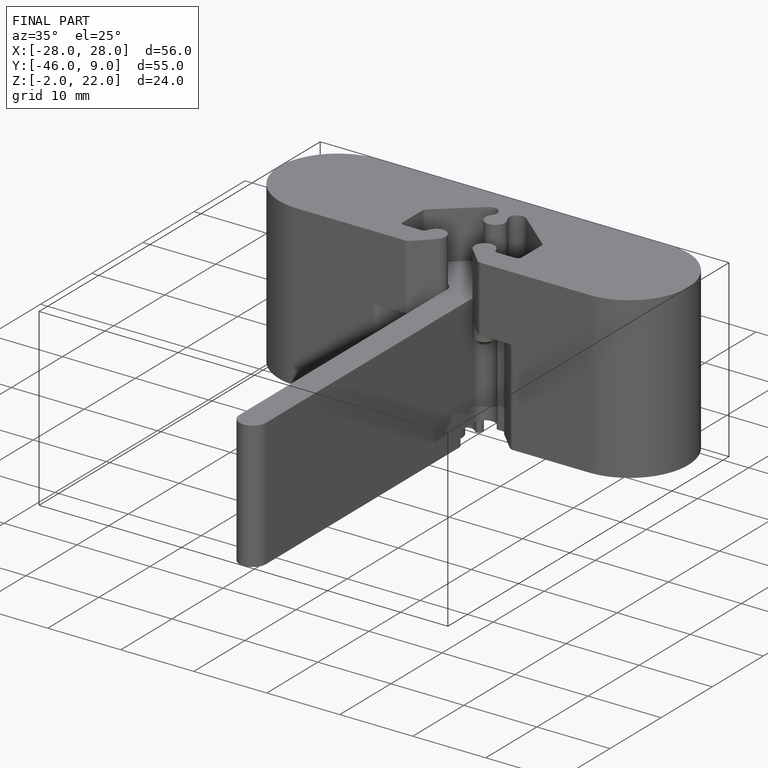
[diagram: finished part — iso view with bounding-box wireframe]
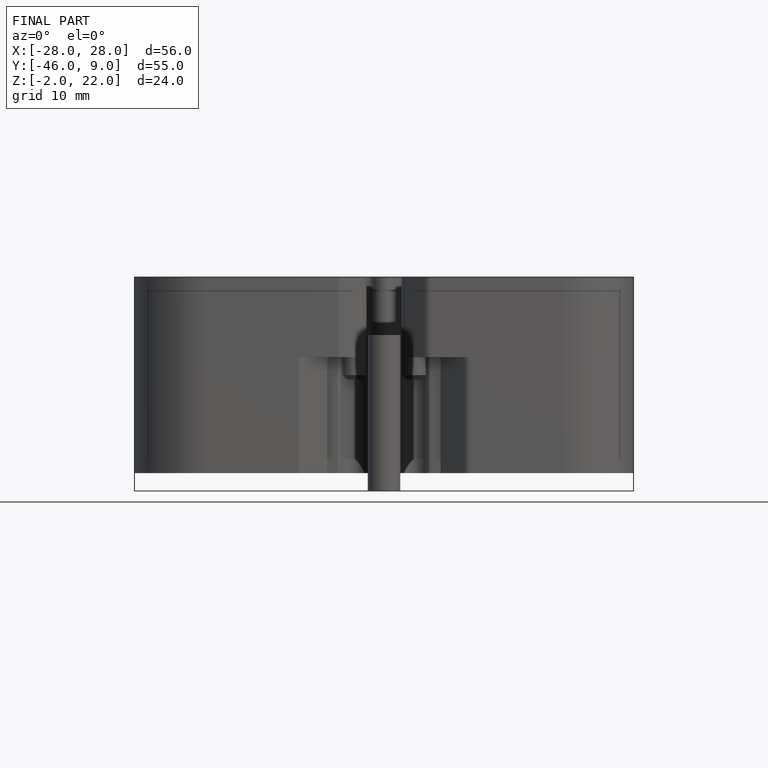
[diagram: finished part — front view with bounding-box wireframe]
